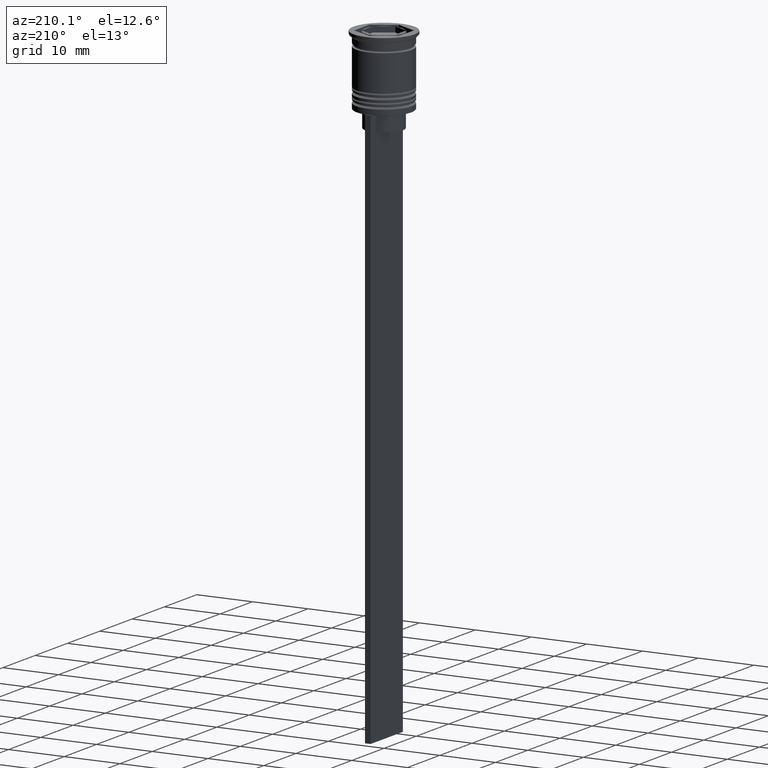
[diagram: clean part render]
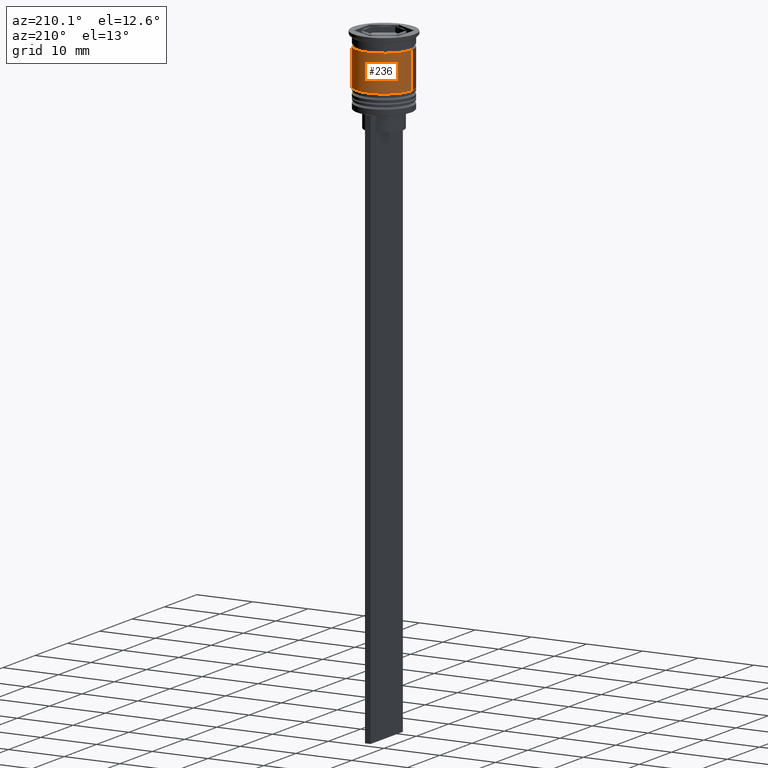
[diagram: same view with one face highlighted and labeled with its STEP entity id]
A machine part, auxiliary view. The second image highlights one B-rep face of the part: STEP entity #236.
In plain terms, the highlighted cylindrical surface (edge-blend (fillet) strip) has radius 5 mm, axis along (-0, -0, 1).
Its self-contained STEP definition (entity closure, byte-faithful):
#2 = ORIENTED_EDGE ( 'NONE', *, *, #817, .T. ) ;
#26 = EDGE_LOOP ( 'NONE', ( #2517, #2, #1631, #2476 ) ) ;
#38 = DIRECTION ( 'NONE',  ( 1.000000000000000000, 0.000000000000000000, 0.000000000000000000 ) ) ;
#236 = ADVANCED_FACE ( 'NONE', ( #1830 ), #812, .T. ) ;
#341 = LINE ( 'NONE', #2323, #1390 ) ;
#396 = CARTESIAN_POINT ( 'NONE',  ( 0.000000000000000000, 0.000000000000000000, -2.500000000000000000 ) ) ;
#405 = CARTESIAN_POINT ( 'NONE',  ( 4.999999999999999112, 0.000000000000000000, -2.500000000000000000 ) ) ;
#520 = EDGE_CURVE ( 'NONE', #2417, #656, #341, .T. ) ;
#541 = AXIS2_PLACEMENT_3D ( 'NONE', #2009, #1983, #626 ) ;
#626 = DIRECTION ( 'NONE',  ( 1.000000000000000000, 0.000000000000000000, 0.000000000000000000 ) ) ;
#656 = VERTEX_POINT ( 'NONE', #405 ) ;
#812 = CYLINDRICAL_SURFACE ( 'NONE', #1640, 5.000000000000000000 ) ;
#817 = EDGE_CURVE ( 'NONE', #1381, #1898, #1634, .T. ) ;
#850 = CARTESIAN_POINT ( 'NONE',  ( 0.000000000000000000, 0.000000000000000000, 0.000000000000000000 ) ) ;
#916 = CIRCLE ( 'NONE', #541, 5.000000000000000888 ) ;
#966 = VECTOR ( 'NONE', #2269, 1000.000000000000000 ) ;
#1031 = DIRECTION ( 'NONE',  ( -0.000000000000000000, -0.000000000000000000, 1.000000000000000000 ) ) ;
#1069 = CARTESIAN_POINT ( 'NONE',  ( -5.000000000000000000, 6.123233995736766282E-16, 0.000000000000000000 ) ) ;
#1106 = CARTESIAN_POINT ( 'NONE',  ( -5.000000000000000888, 6.123233995736767268E-16, -9.000000000000001776 ) ) ;
#1191 = CARTESIAN_POINT ( 'NONE',  ( -4.999999999999999112, 6.123233995736766282E-16, -2.500000000000000000 ) ) ;
#1333 = AXIS2_PLACEMENT_3D ( 'NONE', #396, #1788, #1572 ) ;
#1378 = CARTESIAN_POINT ( 'NONE',  ( 5.000000000000000888, 0.000000000000000000, -9.000000000000001776 ) ) ;
#1381 = VERTEX_POINT ( 'NONE', #1106 ) ;
#1390 = VECTOR ( 'NONE', #1895, 1000.000000000000000 ) ;
#1572 = DIRECTION ( 'NONE',  ( 1.000000000000000000, 0.000000000000000000, 0.000000000000000000 ) ) ;
#1630 = CIRCLE ( 'NONE', #1333, 4.999999999999999112 ) ;
#1631 = ORIENTED_EDGE ( 'NONE', *, *, #1849, .F. ) ;
#1634 = LINE ( 'NONE', #1069, #966 ) ;
#1640 = AXIS2_PLACEMENT_3D ( 'NONE', #850, #1031, #38 ) ;
#1788 = DIRECTION ( 'NONE',  ( -0.000000000000000000, -0.000000000000000000, 1.000000000000000000 ) ) ;
#1830 = FACE_OUTER_BOUND ( 'NONE', #26, .T. ) ;
#1849 = EDGE_CURVE ( 'NONE', #656, #1898, #1630, .T. ) ;
#1895 = DIRECTION ( 'NONE',  ( -0.000000000000000000, -0.000000000000000000, 1.000000000000000000 ) ) ;
#1898 = VERTEX_POINT ( 'NONE', #1191 ) ;
#1906 = EDGE_CURVE ( 'NONE', #2417, #1381, #916, .T. ) ;
#1983 = DIRECTION ( 'NONE',  ( -0.000000000000000000, -0.000000000000000000, 1.000000000000000000 ) ) ;
#2009 = CARTESIAN_POINT ( 'NONE',  ( 0.000000000000000000, 0.000000000000000000, -9.000000000000001776 ) ) ;
#2269 = DIRECTION ( 'NONE',  ( -0.000000000000000000, -0.000000000000000000, 1.000000000000000000 ) ) ;
#2323 = CARTESIAN_POINT ( 'NONE',  ( 5.000000000000000000, 0.000000000000000000, 0.000000000000000000 ) ) ;
#2417 = VERTEX_POINT ( 'NONE', #1378 ) ;
#2476 = ORIENTED_EDGE ( 'NONE', *, *, #520, .F. ) ;
#2517 = ORIENTED_EDGE ( 'NONE', *, *, #1906, .T. ) ;